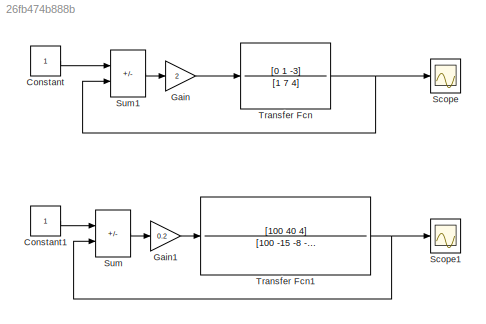
MODEL slx_26fb474b888b
KIND model
CONFIG AbsTol = auto
CONFIG EnableMultiTasking = off
CONFIG FixedStep = auto
CONFIG MaxStep = auto
CONFIG MinStep = auto
CONFIG RelTol = 1e-8
CONFIG SampleTimeConstraint = Unconstrained
CONFIG SolverName = VariableStepAuto
CONFIG StartTime = 0.0
CONFIG StopTime = 50
BLOCK [Constant] Constant
BLOCK [Constant] Constant1
BLOCK [Gain] Gain
  Gain = 2
BLOCK [Gain] Gain1
  Gain = 0.2
BLOCK [Scope] Scope
  Floating = off
  NumInputPorts = 1
  ScopeSpecificationString = Simulink.scopes.TimeScopeBlockCfg('CurrentConfiguration', extmgr.ConfigurationSet(extmgr.Configuration('Core','General UI',true,'FigureColor',[1 1 1]),extmgr.Configuration('Core','Source UI',true),extmgr.Configuration('Sources','WiredSimulink',true),extmgr.Configuration('Visuals','Time Domain',true,'SerializedDisplays',{struct('MinYLimReal','-157558.68789','MaxYLimReal','17506.65492','YLabelReal',...<+1687ch>
BLOCK [Scope] Scope1
  Floating = off
  NumInputPorts = 1
  ScopeSpecificationString = Simulink.scopes.TimeScopeBlockCfg('CurrentConfiguration', extmgr.ConfigurationSet(extmgr.Configuration('Core','General UI',true,'FigureColor',[1 1 1]),extmgr.Configuration('Core','Source UI',true),extmgr.Configuration('Sources','WiredSimulink',true,'DataLoggingVariableName','ScopeData1'),extmgr.Configuration('Visuals','Time Domain',true,'SerializedDisplays',{struct('MinYLimReal','-60.41174','MaxYL...<+1696ch>
BLOCK [Sum] Sum
  IconShape = rectangular
  Inputs = +-
BLOCK [Sum] Sum1
  IconShape = rectangular
  Inputs = +-
BLOCK [TransferFcn] Transfer Fcn
  Denominator = [1 7 4]
  Numerator = [0 1 -3]
BLOCK [TransferFcn] Transfer Fcn1
  Denominator = [100 -15 -8 -0.6]
  Numerator = [100 40 4]
LINE Constant1:1 -> Sum:1
LINE Constant:1 -> Sum1:1
LINE Gain1:1 -> Transfer Fcn1:1
LINE Gain:1 -> Transfer Fcn:1
LINE Sum1:1 -> Gain:1
LINE Sum:1 -> Gain1:1
NET Transfer Fcn1:1 -> Scope1:1, Sum:2
NET Transfer Fcn:1 -> Scope:1, Sum1:2
note: NET lines group one-source signal fan-out (src -> all destinations, sorted); 1:1 wires keep LINE
